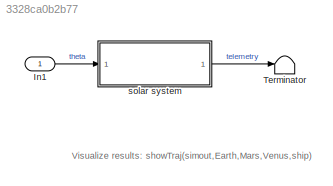
MODEL slx_3328ca0b2b77
KIND model
CONFIG AbsTol = auto
CONFIG FixedStep = auto
CONFIG MaxStep = 24*60*60
CONFIG MinStep = auto
CONFIG PreLoadFcn = %initW
CONFIG RelTol = 1e-3
CONFIG SampleTimeConstraint = Unconstrained
CONFIG Solver = ode45
CONFIG SolverMode = Auto
CONFIG SolverName = ode45
CONFIG StartTime = 0.0
CONFIG StopFcn = %showTraj
CONFIG StopTime = (stopDay)*24*60*60
BLOCK [Inport] In1
  IconDisplay = Port number
BLOCK [Terminator] Terminator
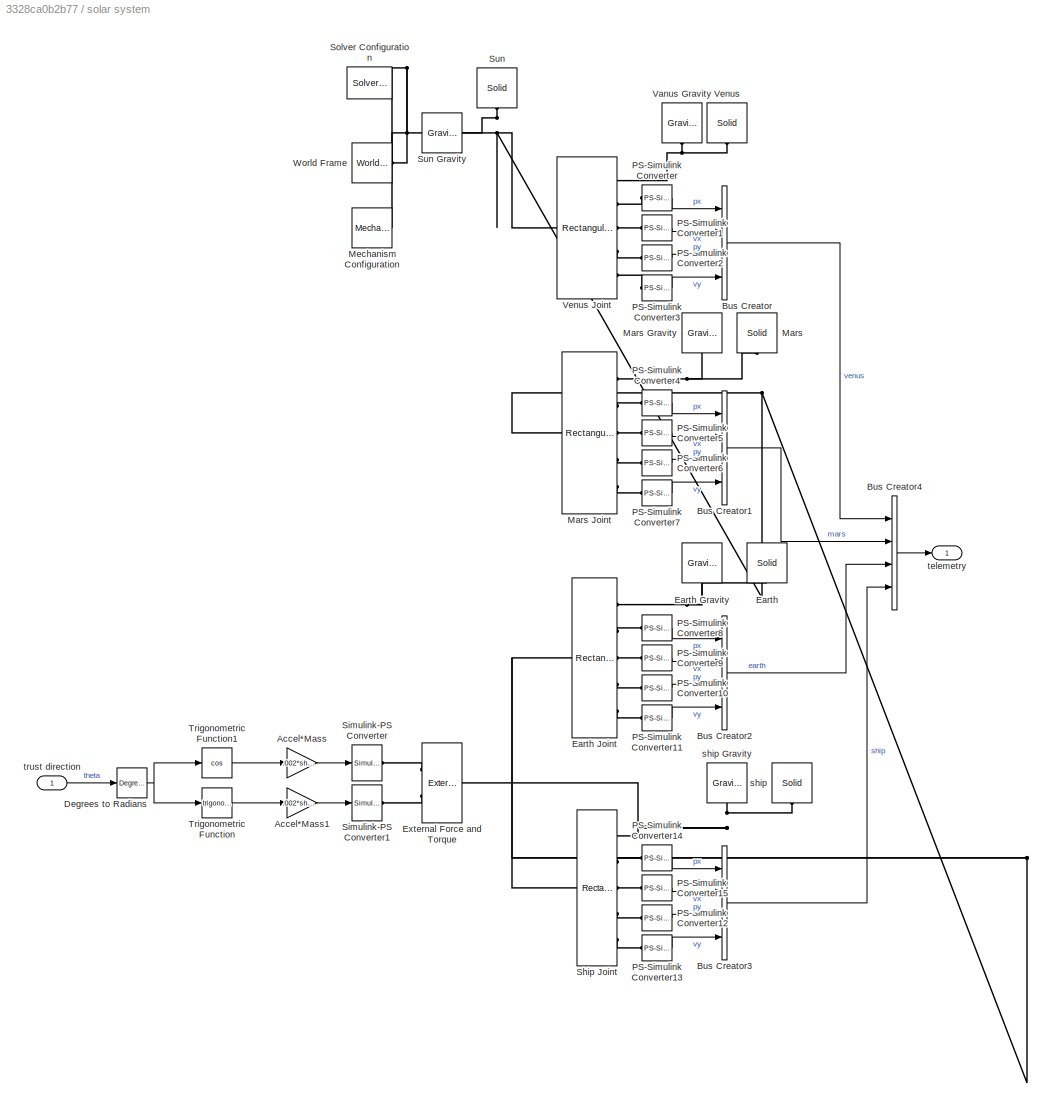
BLOCK [SubSystem] solar system
  Ports = [1, 1]
  RequestExecContextInheritance = off
  Variant = off
BLOCK [Gain] solar system/Accel*Mass
  Gain = .002*ship.M
  OutDataTypeStr = Inherit: Inherit via internal rule
  ParamDataTypeStr = Inherit: Inherit via internal rule
  SaturateOnIntegerOverflow = off
BLOCK [Gain] solar system/Accel*Mass1
  Gain = .002*ship.M
  OutDataTypeStr = Inherit: Inherit via internal rule
  ParamDataTypeStr = Inherit: Inherit via internal rule
  SaturateOnIntegerOverflow = off
BLOCK [BusCreator] solar system/Bus Creator
  DisplayOption = bar
  InheritFromInputs = on
  Inputs = 4
  Ports = [4, 1]
BLOCK [BusCreator] solar system/Bus Creator1
  DisplayOption = bar
  InheritFromInputs = on
  Inputs = 4
  Ports = [4, 1]
BLOCK [BusCreator] solar system/Bus Creator2
  DisplayOption = bar
  InheritFromInputs = on
  Inputs = 4
  Ports = [4, 1]
BLOCK [BusCreator] solar system/Bus Creator3
  DisplayOption = bar
  InheritFromInputs = on
  Inputs = 4
  Ports = [4, 1]
BLOCK [BusCreator] solar system/Bus Creator4
  DisplayOption = bar
  InheritFromInputs = on
  Inputs = 4
  Ports = [4, 1]
BLOCK [Reference] solar system/Degrees to Radians  REF=simulink_extras/Transformations/Degrees to
Radians
  Ports = [1, 1]
  SourceBlock = simulink_extras/Transformations/Degrees to\nRadians
  SourceType = DegreesToRadians
BLOCK [Reference] solar system/Earth  REF=sm_lib/Body Elements/Solid
  Ports = [0, 0, 0, 0, 0, 0, 1]
  SourceBlock = sm_lib/Body Elements/Solid
  SourceType = Solid
BLOCK [Reference] solar system/Earth Gravity  REF=sm_lib/Forces and
Torques/Gravitational
Field
  Ports = [0, 0, 0, 0, 0, 1]
  SourceBlock = sm_lib/Forces and\nTorques/Gravitational\nField
  SourceType = Gravitational\nField
BLOCK [Reference] solar system/Earth Joint  REF=sm_lib/Joints/Rectangular
Joint
  Ports = [0, 0, 0, 0, 0, 1, 5]
  SourceBlock = sm_lib/Joints/Rectangular\nJoint
  SourceType = Rectangular\nJoint
BLOCK [Reference] solar system/External Force and Torque  REF=sm_lib/Forces and
Torques/External Force
and Torque
  Ports = [0, 0, 0, 0, 0, 2, 1]
  SourceBlock = sm_lib/Forces and\nTorques/External Force\nand Torque
  SourceType = External Force\nand Torque
BLOCK [Reference] solar system/Mars  REF=sm_lib/Body Elements/Solid
  Ports = [0, 0, 0, 0, 0, 0, 1]
  SourceBlock = sm_lib/Body Elements/Solid
  SourceType = Solid
BLOCK [Reference] solar system/Mars Gravity  REF=sm_lib/Forces and
Torques/Gravitational
Field
  Ports = [0, 0, 0, 0, 0, 1]
  SourceBlock = sm_lib/Forces and\nTorques/Gravitational\nField
  SourceType = Gravitational\nField
BLOCK [Reference] solar system/Mars Joint  REF=sm_lib/Joints/Rectangular
Joint
  Ports = [0, 0, 0, 0, 0, 1, 5]
  SourceBlock = sm_lib/Joints/Rectangular\nJoint
  SourceType = Rectangular\nJoint
BLOCK [Reference] solar system/Mechanism Configuration  REF=sm_lib/Utilities/Mechanism
Configuration
  Ports = [0, 0, 0, 0, 0, 0, 1]
  SourceBlock = sm_lib/Utilities/Mechanism\nConfiguration
  SourceType = Mechanism\nConfiguration
BLOCK [Reference] solar system/PS-Simulink Converter  REF=nesl_utility/PS-Simulink
Converter
  Ports = [0, 1, 0, 0, 0, 1]
  SourceBlock = nesl_utility/PS-Simulink\nConverter
  SourceType = PS-Simulink\nConverter
BLOCK [Reference] solar system/PS-Simulink Converter1  REF=nesl_utility/PS-Simulink
Converter
  Ports = [0, 1, 0, 0, 0, 1]
  SourceBlock = nesl_utility/PS-Simulink\nConverter
  SourceType = PS-Simulink\nConverter
BLOCK [Reference] solar system/PS-Simulink Converter10  REF=nesl_utility/PS-Simulink
Converter
  Ports = [0, 1, 0, 0, 0, 1]
  SourceBlock = nesl_utility/PS-Simulink\nConverter
  SourceType = PS-Simulink\nConverter
BLOCK [Reference] solar system/PS-Simulink Converter11  REF=nesl_utility/PS-Simulink
Converter
  Ports = [0, 1, 0, 0, 0, 1]
  SourceBlock = nesl_utility/PS-Simulink\nConverter
  SourceType = PS-Simulink\nConverter
BLOCK [Reference] solar system/PS-Simulink Converter12  REF=nesl_utility/PS-Simulink
Converter
  Ports = [0, 1, 0, 0, 0, 1]
  SourceBlock = nesl_utility/PS-Simulink\nConverter
  SourceType = PS-Simulink\nConverter
BLOCK [Reference] solar system/PS-Simulink Converter13  REF=nesl_utility/PS-Simulink
Converter
  Ports = [0, 1, 0, 0, 0, 1]
  SourceBlock = nesl_utility/PS-Simulink\nConverter
  SourceType = PS-Simulink\nConverter
BLOCK [Reference] solar system/PS-Simulink Converter14  REF=nesl_utility/PS-Simulink
Converter
  Ports = [0, 1, 0, 0, 0, 1]
  SourceBlock = nesl_utility/PS-Simulink\nConverter
  SourceType = PS-Simulink\nConverter
BLOCK [Reference] solar system/PS-Simulink Converter15  REF=nesl_utility/PS-Simulink
Converter
  Ports = [0, 1, 0, 0, 0, 1]
  SourceBlock = nesl_utility/PS-Simulink\nConverter
  SourceType = PS-Simulink\nConverter
BLOCK [Reference] solar system/PS-Simulink Converter2  REF=nesl_utility/PS-Simulink
Converter
  Ports = [0, 1, 0, 0, 0, 1]
  SourceBlock = nesl_utility/PS-Simulink\nConverter
  SourceType = PS-Simulink\nConverter
BLOCK [Reference] solar system/PS-Simulink Converter3  REF=nesl_utility/PS-Simulink
Converter
  Ports = [0, 1, 0, 0, 0, 1]
  SourceBlock = nesl_utility/PS-Simulink\nConverter
  SourceType = PS-Simulink\nConverter
BLOCK [Reference] solar system/PS-Simulink Converter4  REF=nesl_utility/PS-Simulink
Converter
  Ports = [0, 1, 0, 0, 0, 1]
  SourceBlock = nesl_utility/PS-Simulink\nConverter
  SourceType = PS-Simulink\nConverter
BLOCK [Reference] solar system/PS-Simulink Converter5  REF=nesl_utility/PS-Simulink
Converter
  Ports = [0, 1, 0, 0, 0, 1]
  SourceBlock = nesl_utility/PS-Simulink\nConverter
  SourceType = PS-Simulink\nConverter
BLOCK [Reference] solar system/PS-Simulink Converter6  REF=nesl_utility/PS-Simulink
Converter
  Ports = [0, 1, 0, 0, 0, 1]
  SourceBlock = nesl_utility/PS-Simulink\nConverter
  SourceType = PS-Simulink\nConverter
BLOCK [Reference] solar system/PS-Simulink Converter7  REF=nesl_utility/PS-Simulink
Converter
  Ports = [0, 1, 0, 0, 0, 1]
  SourceBlock = nesl_utility/PS-Simulink\nConverter
  SourceType = PS-Simulink\nConverter
BLOCK [Reference] solar system/PS-Simulink Converter8  REF=nesl_utility/PS-Simulink
Converter
  Ports = [0, 1, 0, 0, 0, 1]
  SourceBlock = nesl_utility/PS-Simulink\nConverter
  SourceType = PS-Simulink\nConverter
BLOCK [Reference] solar system/PS-Simulink Converter9  REF=nesl_utility/PS-Simulink
Converter
  Ports = [0, 1, 0, 0, 0, 1]
  SourceBlock = nesl_utility/PS-Simulink\nConverter
  SourceType = PS-Simulink\nConverter
BLOCK [Reference] solar system/Ship Joint  REF=sm_lib/Joints/Rectangular
Joint
  Ports = [0, 0, 0, 0, 0, 1, 5]
  SourceBlock = sm_lib/Joints/Rectangular\nJoint
  SourceType = Rectangular\nJoint
BLOCK [Reference] solar system/Simulink-PS Converter  REF=nesl_utility/Simulink-PS
Converter
  Ports = [1, 0, 0, 0, 0, 0, 1]
  SourceBlock = nesl_utility/Simulink-PS\nConverter
  SourceType = Simulink-PS\nConverter
BLOCK [Reference] solar system/Simulink-PS Converter1  REF=nesl_utility/Simulink-PS
Converter
  Ports = [1, 0, 0, 0, 0, 0, 1]
  SourceBlock = nesl_utility/Simulink-PS\nConverter
  SourceType = Simulink-PS\nConverter
BLOCK [Reference] solar system/Solver Configuration  REF=nesl_utility/Solver
Configuration
  Ports = [0, 0, 0, 0, 0, 0, 1]
  SourceBlock = nesl_utility/Solver\nConfiguration
  SourceType = Solver\nConfiguration
BLOCK [Reference] solar system/Sun  REF=sm_lib/Body Elements/Solid
  Ports = [0, 0, 0, 0, 0, 0, 1]
  SourceBlock = sm_lib/Body Elements/Solid
  SourceType = Solid
BLOCK [Reference] solar system/Sun Gravity  REF=sm_lib/Forces and
Torques/Gravitational
Field
  Ports = [0, 0, 0, 0, 0, 1]
  SourceBlock = sm_lib/Forces and\nTorques/Gravitational\nField
  SourceType = Gravitational\nField
BLOCK [Trigonometry] solar system/Trigonometric Function
  Ports = [1, 1]
BLOCK [Trigonometry] solar system/Trigonometric Function1
  Operator = cos
  Ports = [1, 1]
BLOCK [Reference] solar system/Vanus Gravity  REF=sm_lib/Forces and
Torques/Gravitational
Field
  Ports = [0, 0, 0, 0, 0, 1]
  SourceBlock = sm_lib/Forces and\nTorques/Gravitational\nField
  SourceType = Gravitational\nField
BLOCK [Reference] solar system/Venus  REF=sm_lib/Body Elements/Solid
  Ports = [0, 0, 0, 0, 0, 0, 1]
  SourceBlock = sm_lib/Body Elements/Solid
  SourceType = Solid
BLOCK [Reference] solar system/Venus Joint  REF=sm_lib/Joints/Rectangular
Joint
  Ports = [0, 0, 0, 0, 0, 1, 5]
  SourceBlock = sm_lib/Joints/Rectangular\nJoint
  SourceType = Rectangular\nJoint
BLOCK [Reference] solar system/World Frame  REF=sm_lib/Frames and
Transforms/World Frame
  Ports = [0, 0, 0, 0, 0, 0, 1]
  SourceBlock = sm_lib/Frames and\nTransforms/World Frame
  SourceType = World Frame
BLOCK [Reference] solar system/ship  REF=sm_lib/Body Elements/Solid
  Ports = [0, 0, 0, 0, 0, 0, 1]
  SourceBlock = sm_lib/Body Elements/Solid
  SourceType = Solid
BLOCK [Reference] solar system/ship Gravity  REF=sm_lib/Forces and
Torques/Gravitational
Field
  Ports = [0, 0, 0, 0, 0, 1]
  SourceBlock = sm_lib/Forces and\nTorques/Gravitational\nField
  SourceType = Gravitational\nField
BLOCK [Outport] solar system/telemetry
  IconDisplay = Port number
  SampleTime = 0
BLOCK [Inport] solar system/trust direction
  IconDisplay = Port number
  OutDataTypeStr = double
  PortDimensions = 1
  SampleTime = [0,1]
  SamplingMode = Sample based
  SignalType = real
ANNOTATION (root): Visualize results: showTraj(simout,Earth,Mars,Venus,ship)
LINE In1:1 -> solar system:1
LINE solar system/Accel*Mass1:1 -> solar system/Simulink-PS Converter1:1
LINE solar system/Accel*Mass:1 -> solar system/Simulink-PS Converter:1
LINE solar system/Bus Creator1:1 -> solar system/Bus Creator4:2
LINE solar system/Bus Creator2:1 -> solar system/Bus Creator4:3
LINE solar system/Bus Creator3:1 -> solar system/Bus Creator4:4
LINE solar system/Bus Creator4:1 -> solar system/telemetry:1
LINE solar system/Bus Creator:1 -> solar system/Bus Creator4:1
NET solar system/Degrees to Radians:1 -> solar system/Trigonometric Function1:1, solar system/Trigonometric Function:1
LINE solar system/PS-Simulink Converter10:1 -> solar system/Bus Creator2:3
LINE solar system/PS-Simulink Converter11:1 -> solar system/Bus Creator2:4
LINE solar system/PS-Simulink Converter12:1 -> solar system/Bus Creator3:3
LINE solar system/PS-Simulink Converter13:1 -> solar system/Bus Creator3:4
LINE solar system/PS-Simulink Converter14:1 -> solar system/Bus Creator3:1
LINE solar system/PS-Simulink Converter15:1 -> solar system/Bus Creator3:2
LINE solar system/PS-Simulink Converter1:1 -> solar system/Bus Creator:2
LINE solar system/PS-Simulink Converter2:1 -> solar system/Bus Creator:3
LINE solar system/PS-Simulink Converter3:1 -> solar system/Bus Creator:4
LINE solar system/PS-Simulink Converter4:1 -> solar system/Bus Creator1:1
LINE solar system/PS-Simulink Converter5:1 -> solar system/Bus Creator1:2
LINE solar system/PS-Simulink Converter6:1 -> solar system/Bus Creator1:3
LINE solar system/PS-Simulink Converter7:1 -> solar system/Bus Creator1:4
LINE solar system/PS-Simulink Converter8:1 -> solar system/Bus Creator2:1
LINE solar system/PS-Simulink Converter9:1 -> solar system/Bus Creator2:2
LINE solar system/PS-Simulink Converter:1 -> solar system/Bus Creator:1
LINE solar system/Trigonometric Function1:1 -> solar system/Accel*Mass:1
LINE solar system/Trigonometric Function:1 -> solar system/Accel*Mass1:1
LINE solar system/trust direction:1 -> solar system/Degrees to Radians:1
LINE solar system:1 -> Terminator:1
PNET net1: solar system/Earth Gravity:LConn1 -- solar system/Earth Joint:RConn1 -- solar system/Earth:RConn1
PNET net2: solar system/Earth Joint:LConn1 -- solar system/Mars Joint:LConn1 -- solar system/Mechanism Configuration:RConn1 -- solar system/Ship Joint:LConn1 -- solar system/Solver Configuration:RConn1 -- solar system/Sun Gravity:LConn1 -- solar system/Sun:RConn1 -- solar system/Venus Joint:LConn1 -- solar system/World Frame:RConn1
PLINE solar system/Earth Joint:RConn2 -- solar system/PS-Simulink Converter8:LConn1
PLINE solar system/Earth Joint:RConn3 -- solar system/PS-Simulink Converter9:LConn1
PLINE solar system/Earth Joint:RConn4 -- solar system/PS-Simulink Converter10:LConn1
PLINE solar system/Earth Joint:RConn5 -- solar system/PS-Simulink Converter11:LConn1
PLINE solar system/External Force and Torque:LConn1 -- solar system/Simulink-PS Converter:RConn1
PLINE solar system/External Force and Torque:LConn2 -- solar system/Simulink-PS Converter1:RConn1
PNET net3: solar system/External Force and Torque:RConn1 -- solar system/Ship Joint:RConn1 -- solar system/ship Gravity:LConn1 -- solar system/ship:RConn1
PNET net4: solar system/Mars Gravity:LConn1 -- solar system/Mars Joint:RConn1 -- solar system/Mars:RConn1
PLINE solar system/Mars Joint:RConn2 -- solar system/PS-Simulink Converter4:LConn1
PLINE solar system/Mars Joint:RConn3 -- solar system/PS-Simulink Converter5:LConn1
PLINE solar system/Mars Joint:RConn4 -- solar system/PS-Simulink Converter6:LConn1
PLINE solar system/Mars Joint:RConn5 -- solar system/PS-Simulink Converter7:LConn1
PLINE solar system/PS-Simulink Converter12:LConn1 -- solar system/Ship Joint:RConn4
PLINE solar system/PS-Simulink Converter13:LConn1 -- solar system/Ship Joint:RConn5
PLINE solar system/PS-Simulink Converter14:LConn1 -- solar system/Ship Joint:RConn2
PLINE solar system/PS-Simulink Converter15:LConn1 -- solar system/Ship Joint:RConn3
PLINE solar system/PS-Simulink Converter1:LConn1 -- solar system/Venus Joint:RConn3
PLINE solar system/PS-Simulink Converter2:LConn1 -- solar system/Venus Joint:RConn4
PLINE solar system/PS-Simulink Converter3:LConn1 -- solar system/Venus Joint:RConn5
PLINE solar system/PS-Simulink Converter:LConn1 -- solar system/Venus Joint:RConn2
PNET net5: solar system/Vanus Gravity:LConn1 -- solar system/Venus Joint:RConn1 -- solar system/Venus:RConn1
note: NET lines group one-source signal fan-out (src -> all destinations, sorted); 1:1 wires keep LINE; PNET lines group multi-terminal physical nets as a canonical sorted terminal list (undirected conserving connections); 2-terminal nets keep the pairwise PLINE form
